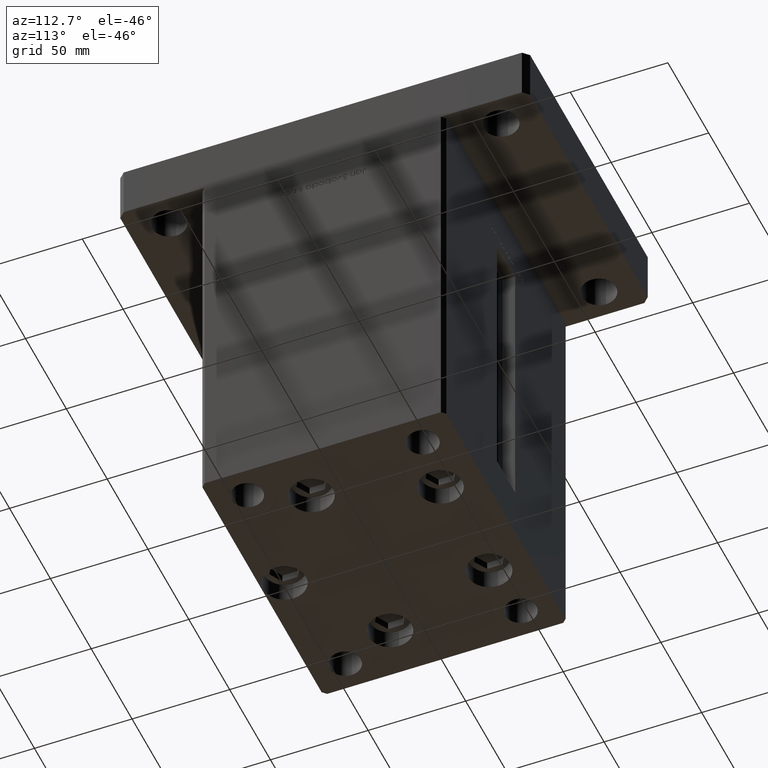
[diagram: clean part render]
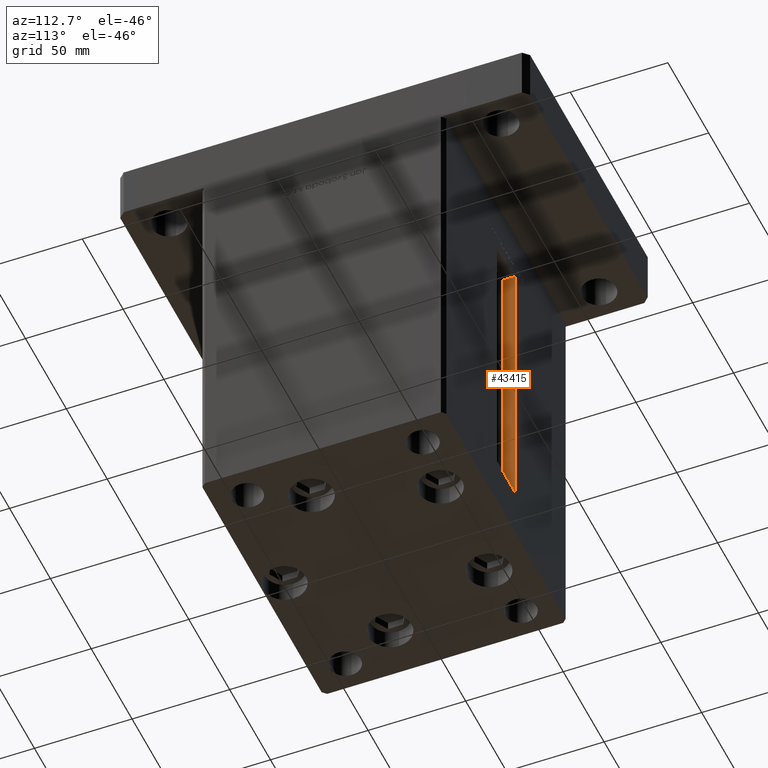
[diagram: same view with one face highlighted and labeled with its STEP entity id]
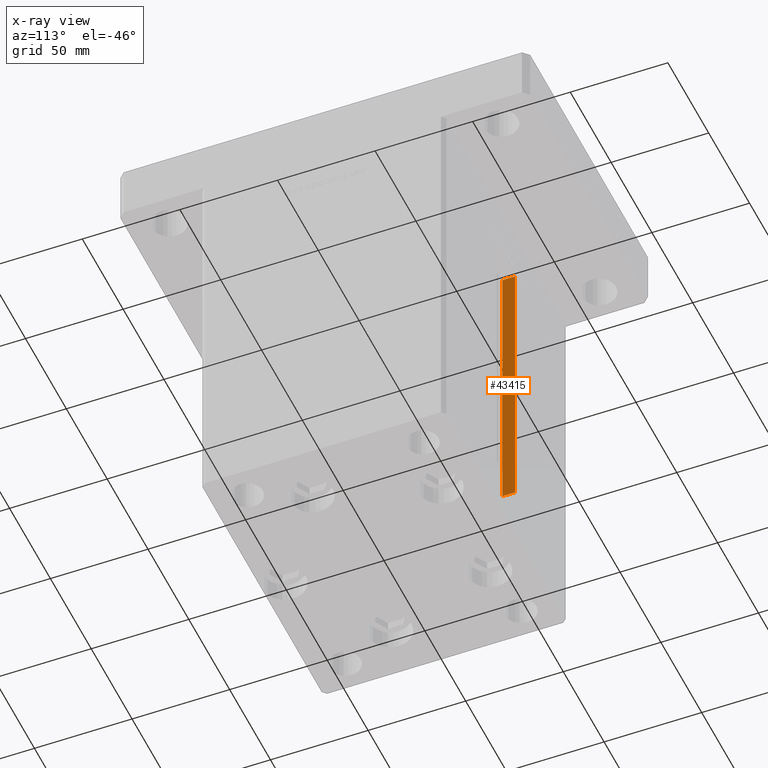
[diagram: x-ray of the same camera — body ghosted, the highlighted face saturated]
A machine part, auxiliary view. The second image highlights one B-rep face of the part: STEP entity #43415.
The next image is the same camera in x-ray: the body ghosted, the highlighted face saturated — about 0% of this face is hidden behind the body in this view.
In plain terms, the highlighted planar face has unit normal (-1, 0, 0).
Its self-contained STEP definition (entity closure, byte-faithful):
#1299 = ORIENTED_EDGE ( 'NONE', *, *, #9058, .F. ) ;
#1302 = CARTESIAN_POINT ( 'NONE',  ( -11.25000000000000178, 0.000000000000000000, 147.0000000000000000 ) ) ;
#1372 = CARTESIAN_POINT ( 'NONE',  ( -11.25000000000000178, 55.99999999999999289, 0.000000000000000000 ) ) ;
#3551 = CARTESIAN_POINT ( 'NONE',  ( -11.25000000000000178, 55.99999999999999289, 0.000000000000000000 ) ) ;
#7584 = DIRECTION ( 'NONE',  ( -0.000000000000000000, -0.000000000000000000, 1.000000000000000000 ) ) ;
#7735 = VERTEX_POINT ( 'NONE', #33810 ) ;
#9058 = EDGE_CURVE ( 'NONE', #52675, #10094, #20246, .T. ) ;
#10094 = VERTEX_POINT ( 'NONE', #21862 ) ;
#11623 = CARTESIAN_POINT ( 'NONE',  ( -11.25000000000000178, 55.99999999999999289, 0.000000000000000000 ) ) ;
#15044 = VECTOR ( 'NONE', #17458, 1000.000000000000000 ) ;
#15178 = DIRECTION ( 'NONE',  ( -0.000000000000000000, -0.000000000000000000, 1.000000000000000000 ) ) ;
#17458 = DIRECTION ( 'NONE',  ( 0.000000000000000000, 1.000000000000000000, 0.000000000000000000 ) ) ;
#19237 = ORIENTED_EDGE ( 'NONE', *, *, #36940, .F. ) ;
#20246 = LINE ( 'NONE', #3551, #33629 ) ;
#21862 = CARTESIAN_POINT ( 'NONE',  ( -11.25000000000000178, 55.99999999999999289, 0.000000000000000000 ) ) ;
#22737 = CARTESIAN_POINT ( 'NONE',  ( -11.25000000000000178, 62.49999999999999289, 0.000000000000000000 ) ) ;
#22750 = AXIS2_PLACEMENT_3D ( 'NONE', #1372, #34467, #46854 ) ;
#23588 = VECTOR ( 'NONE', #15178, 1000.000000000000000 ) ;
#25592 = ORIENTED_EDGE ( 'NONE', *, *, #41286, .T. ) ;
#25689 = CARTESIAN_POINT ( 'NONE',  ( -11.25000000000000178, 62.49999999999999289, 0.000000000000000000 ) ) ;
#25743 = EDGE_CURVE ( 'NONE', #7735, #36851, #46520, .T. ) ;
#32761 = ORIENTED_EDGE ( 'NONE', *, *, #25743, .F. ) ;
#33629 = VECTOR ( 'NONE', #52817, 1000.000000000000000 ) ;
#33678 = FACE_OUTER_BOUND ( 'NONE', #41430, .T. ) ;
#33810 = CARTESIAN_POINT ( 'NONE',  ( -11.25000000000000178, 55.99999999999999289, 147.0000000000000000 ) ) ;
#34467 = DIRECTION ( 'NONE',  ( -1.000000000000000000, 0.000000000000000000, 0.000000000000000000 ) ) ;
#36851 = VERTEX_POINT ( 'NONE', #42892 ) ;
#36940 = EDGE_CURVE ( 'NONE', #10094, #7735, #48513, .T. ) ;
#41286 = EDGE_CURVE ( 'NONE', #52675, #36851, #52326, .T. ) ;
#41430 = EDGE_LOOP ( 'NONE', ( #19237, #1299, #25592, #32761 ) ) ;
#42892 = CARTESIAN_POINT ( 'NONE',  ( -11.25000000000000178, 62.49999999999999289, 147.0000000000000000 ) ) ;
#43415 = ADVANCED_FACE ( 'NONE', ( #33678 ), #50102, .F. ) ;
#46520 = LINE ( 'NONE', #1302, #15044 ) ;
#46854 = DIRECTION ( 'NONE',  ( 0.000000000000000000, 0.000000000000000000, 1.000000000000000000 ) ) ;
#48513 = LINE ( 'NONE', #11623, #49248 ) ;
#49248 = VECTOR ( 'NONE', #7584, 1000.000000000000000 ) ;
#50102 = PLANE ( 'NONE',  #22750 ) ;
#52326 = LINE ( 'NONE', #22737, #23588 ) ;
#52675 = VERTEX_POINT ( 'NONE', #25689 ) ;
#52817 = DIRECTION ( 'NONE',  ( -0.000000000000000000, -1.000000000000000000, -0.000000000000000000 ) ) ;